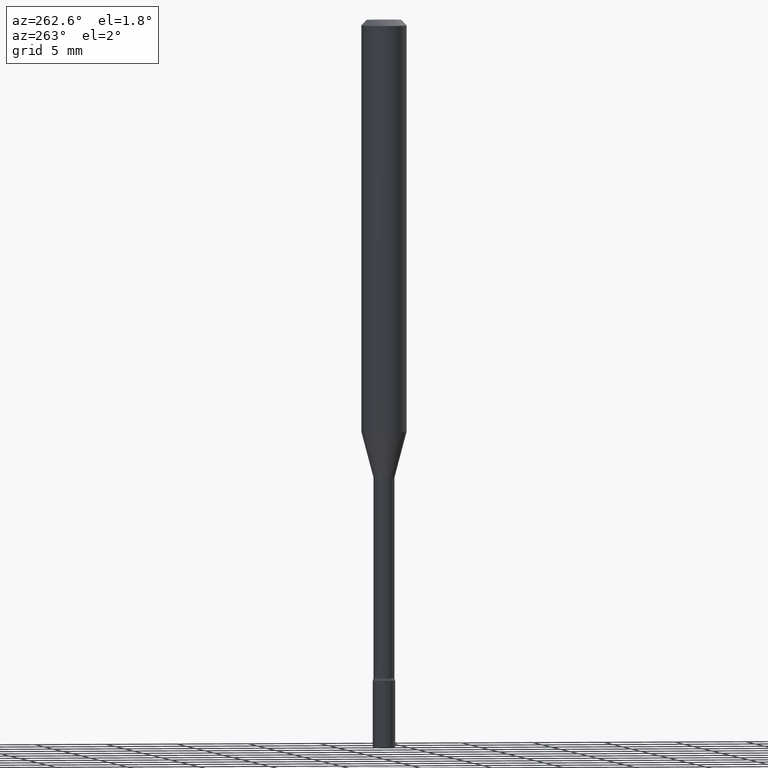
[diagram: clean part render]
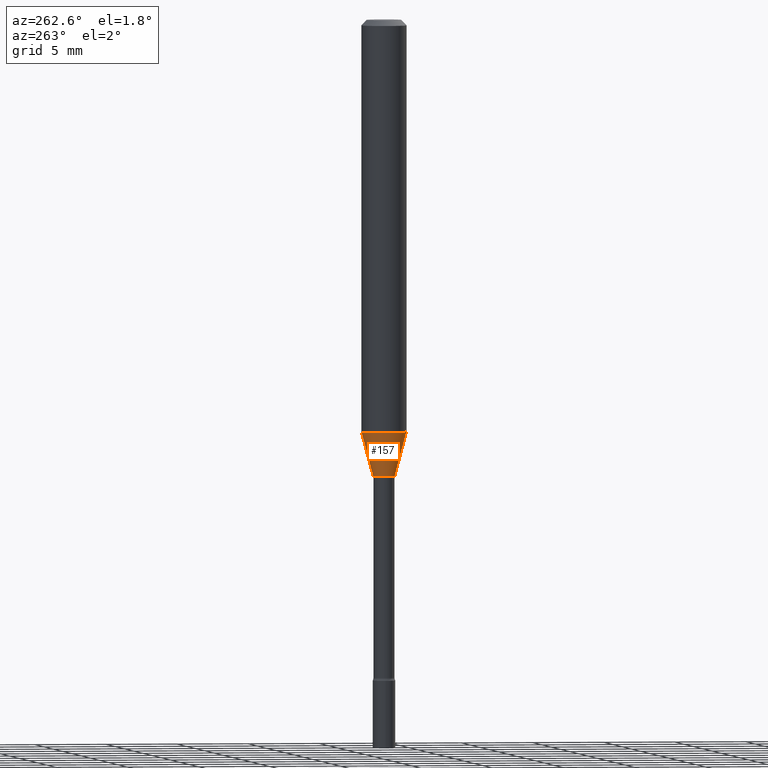
[diagram: same view with one face highlighted and labeled with its STEP entity id]
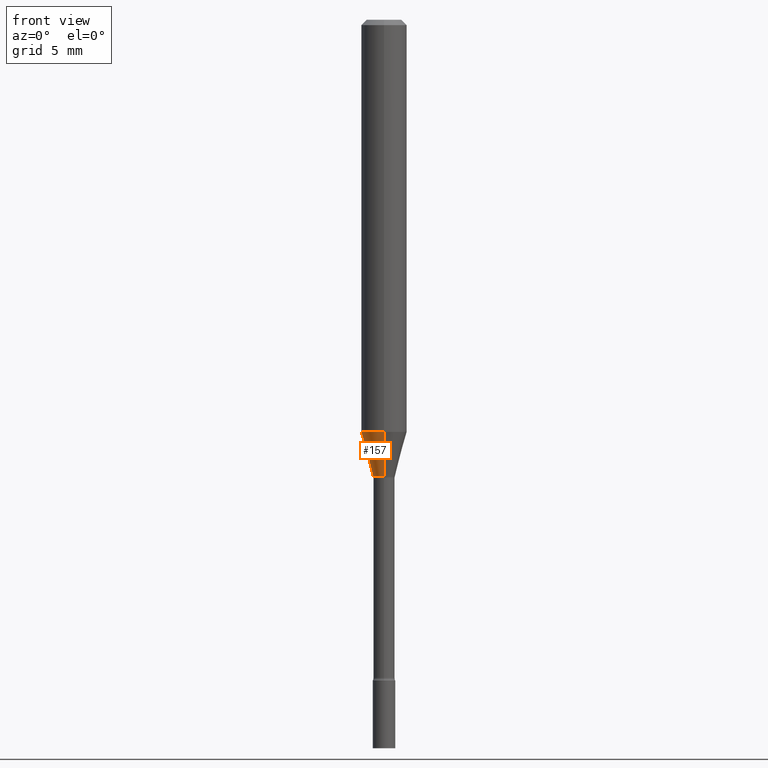
[diagram: same view with one face highlighted and labeled with its STEP entity id]
A machine part, auxiliary view. The second image highlights one B-rep face of the part: STEP entity #157.
A second angle (front view) of the same face is appended — the face is thin or edge-on in the first view.
In plain terms, the highlighted conical surface has half-angle 15 deg.
Its self-contained STEP definition (entity closure, byte-faithful):
#25 = ORIENTED_EDGE ( 'NONE', *, *, #403, .F. ) ;
#34 = CARTESIAN_POINT ( 'NONE',  ( 3.066843755278733880E-29, -4.378641051083626177E-15, -1.254092501787273051 ) ) ;
#42 = AXIS2_PLACEMENT_3D ( 'NONE', #34, #469, #206 ) ;
#51 = EDGE_CURVE ( 'NONE', #68, #71, #320, .T. ) ;
#56 = CARTESIAN_POINT ( 'NONE',  ( 3.274220454076449378E-16, 0.02966111260565960223, -1.254092501787273051 ) ) ;
#68 = VERTEX_POINT ( 'NONE', #478 ) ;
#71 = VERTEX_POINT ( 'NONE', #239 ) ;
#87 = LINE ( 'NONE', #447, #98 ) ;
#88 = DIRECTION ( 'NONE',  ( -1.807323732225328562E-15, -0.2588190451025179639, 0.9659258262890689783 ) ) ;
#93 = DIRECTION ( 'NONE',  ( -6.982962677686265922E-15, -1.000000000000000000, 4.370956789862821150E-15 ) ) ;
#94 = DIRECTION ( 'NONE',  ( -2.445468536737133447E-29, 3.491481724708021844E-15, 1.000000000000000000 ) ) ;
#98 = VECTOR ( 'NONE', #321, 39.37007874015747433 ) ;
#131 = DIRECTION ( 'NONE',  ( -2.445468536737133447E-29, 3.491481724708021844E-15, 1.000000000000000000 ) ) ;
#143 = CARTESIAN_POINT ( 'NONE',  ( 3.066843755278733880E-29, -4.378641051083626177E-15, -1.254092501787273051 ) ) ;
#146 = CIRCLE ( 'NONE', #389, 0.02966111260566397720 ) ;
#157 = ADVANCED_FACE ( 'NONE', ( #261 ), #247, .T. ) ;
#164 = AXIS2_PLACEMENT_3D ( 'NONE', #401, #131, #93 ) ;
#174 = EDGE_CURVE ( 'NONE', #291, #68, #146, .T. ) ;
#181 = VERTEX_POINT ( 'NONE', #336 ) ;
#191 = ORIENTED_EDGE ( 'NONE', *, *, #174, .T. ) ;
#198 = CARTESIAN_POINT ( 'NONE',  ( -2.071224423039705106E-16, -0.02966111260566835564, -1.254092501787273051 ) ) ;
#206 = DIRECTION ( 'NONE',  ( -6.982962677686265133E-15, -1.000000000000000000, 0.000000000000000000 ) ) ;
#239 = CARTESIAN_POINT ( 'NONE',  ( -4.364351673553641579E-16, -0.06250000000000398293, -1.131536105567577888 ) ) ;
#247 = CONICAL_SURFACE ( 'NONE', #42, 0.02966111260566397720, 0.2617993877991501295 ) ;
#261 = FACE_OUTER_BOUND ( 'NONE', #283, .T. ) ;
#283 = EDGE_LOOP ( 'NONE', ( #334, #191, #511, #25 ) ) ;
#291 = VERTEX_POINT ( 'NONE', #56 ) ;
#320 = LINE ( 'NONE', #198, #471 ) ;
#321 = DIRECTION ( 'NONE',  ( 1.839019923739599526E-15, 0.2588190451025248473, 0.9659258262890673130 ) ) ;
#324 = CIRCLE ( 'NONE', #164, 0.06250000000000000000 ) ;
#331 = DIRECTION ( 'NONE',  ( -6.982962677686265133E-15, -1.000000000000000000, 0.000000000000000000 ) ) ;
#334 = ORIENTED_EDGE ( 'NONE', *, *, #372, .F. ) ;
#336 = CARTESIAN_POINT ( 'NONE',  ( 4.440892098500899305E-16, 0.06249999999999602401, -1.131536105567578554 ) ) ;
#372 = EDGE_CURVE ( 'NONE', #291, #181, #87, .T. ) ;
#389 = AXIS2_PLACEMENT_3D ( 'NONE', #143, #94, #331 ) ;
#401 = CARTESIAN_POINT ( 'NONE',  ( 2.767135944347580166E-29, -3.950737633436486769E-15, -1.131536105567578110 ) ) ;
#403 = EDGE_CURVE ( 'NONE', #181, #71, #324, .T. ) ;
#447 = CARTESIAN_POINT ( 'NONE',  ( 2.107548809651993782E-16, 0.02966111260565959876, -1.254092501787273051 ) ) ;
#469 = DIRECTION ( 'NONE',  ( -2.445468536737133447E-29, 3.491481724708021844E-15, 1.000000000000000000 ) ) ;
#471 = VECTOR ( 'NONE', #88, 39.37007874015749564 ) ;
#478 = CARTESIAN_POINT ( 'NONE',  ( -2.071224423039705106E-16, -0.02966111260566835564, -1.254092501787273051 ) ) ;
#511 = ORIENTED_EDGE ( 'NONE', *, *, #51, .T. ) ;